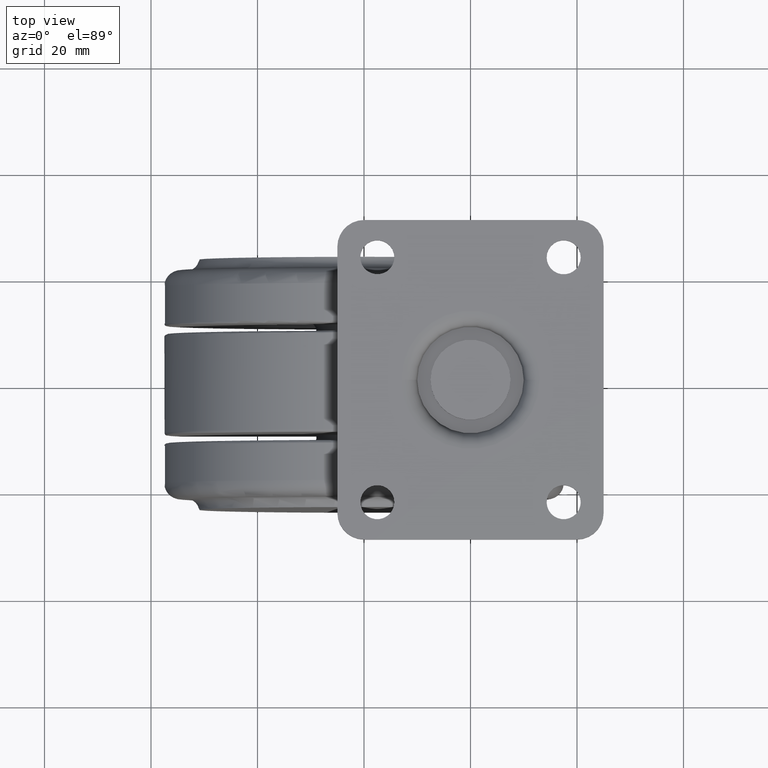
[diagram: clean part render]
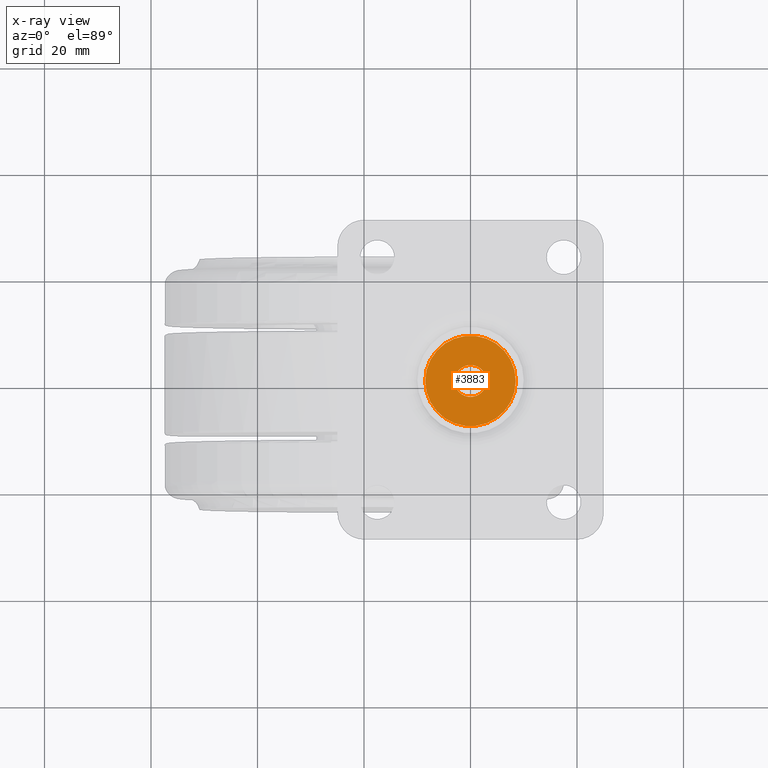
[diagram: x-ray — body ghosted, one internal face saturated and labeled with its STEP entity id]
A machine part, top view, then the same camera in x-ray: the body is ghosted and one INTERNAL B-rep face — a face not visible from any outside direction — is saturated and labeled: STEP entity #3883.
In plain terms, the highlighted planar face has unit normal (0, 0, -1).
Its self-contained STEP definition (entity closure, byte-faithful):
#19 = EDGE_CURVE ( 'NONE', #1940, #538, #3059, .T. ) ;
#176 = CARTESIAN_POINT ( 'NONE',  ( 0.0000000000000000000, 0.0000000000000000000, 0.0000000000000000000 ) ) ;
#271 = CARTESIAN_POINT ( 'NONE',  ( 0.0000000000000000000, 0.0000000000000000000, 0.0000000000000000000 ) ) ;
#291 = AXIS2_PLACEMENT_3D ( 'NONE', #176, #2521, #518 ) ;
#394 = FACE_BOUND ( 'NONE', #1889, .T. ) ;
#406 = ORIENTED_EDGE ( 'NONE', *, *, #903, .T. ) ;
#439 = VERTEX_POINT ( 'NONE', #911 ) ;
#518 = DIRECTION ( 'NONE',  ( -1.000000000000000000, 0.0000000000000000000, 0.0000000000000000000 ) ) ;
#538 = VERTEX_POINT ( 'NONE', #2282 ) ;
#608 = CIRCLE ( 'NONE', #3630, 3.000000000000000000 ) ;
#609 = DIRECTION ( 'NONE',  ( -1.000000000000000000, 0.0000000000000000000, 0.0000000000000000000 ) ) ;
#903 = EDGE_CURVE ( 'NONE', #538, #1940, #608, .T. ) ;
#911 = CARTESIAN_POINT ( 'NONE',  ( 8.500000000000000000, 1.040949779275250100E-015, 0.0000000000000000000 ) ) ;
#1049 = CARTESIAN_POINT ( 'NONE',  ( -8.500000000000000000, 0.0000000000000000000, 0.0000000000000000000 ) ) ;
#1173 = CARTESIAN_POINT ( 'NONE',  ( 0.0000000000000000000, 0.0000000000000000000, 0.0000000000000000000 ) ) ;
#1335 = DIRECTION ( 'NONE',  ( -0.0000000000000000000, -0.0000000000000000000, 1.000000000000000000 ) ) ;
#1400 = ORIENTED_EDGE ( 'NONE', *, *, #4072, .T. ) ;
#1436 = DIRECTION ( 'NONE',  ( 0.0000000000000000000, 0.0000000000000000000, -1.000000000000000000 ) ) ;
#1496 = DIRECTION ( 'NONE',  ( -1.000000000000000000, 0.0000000000000000000, 0.0000000000000000000 ) ) ;
#1628 = AXIS2_PLACEMENT_3D ( 'NONE', #3336, #1335, #3673 ) ;
#1761 = CARTESIAN_POINT ( 'NONE',  ( 0.0000000000000000000, 0.0000000000000000000, 0.0000000000000000000 ) ) ;
#1866 = VERTEX_POINT ( 'NONE', #1049 ) ;
#1889 = EDGE_LOOP ( 'NONE', ( #2350, #406 ) ) ;
#1940 = VERTEX_POINT ( 'NONE', #2071 ) ;
#2071 = CARTESIAN_POINT ( 'NONE',  ( 3.000000000000000000, 0.0000000000000000000, 0.0000000000000000000 ) ) ;
#2092 = ORIENTED_EDGE ( 'NONE', *, *, #3533, .T. ) ;
#2282 = CARTESIAN_POINT ( 'NONE',  ( -3.000000000000000000, 3.673940397442059900E-016, 0.0000000000000000000 ) ) ;
#2350 = ORIENTED_EDGE ( 'NONE', *, *, #19, .T. ) ;
#2358 = AXIS2_PLACEMENT_3D ( 'NONE', #271, #2616, #609 ) ;
#2521 = DIRECTION ( 'NONE',  ( 0.0000000000000000000, 0.0000000000000000000, -1.000000000000000000 ) ) ;
#2616 = DIRECTION ( 'NONE',  ( 0.0000000000000000000, 0.0000000000000000000, -1.000000000000000000 ) ) ;
#3059 = CIRCLE ( 'NONE', #1628, 3.000000000000000000 ) ;
#3195 = FACE_OUTER_BOUND ( 'NONE', #4014, .T. ) ;
#3252 = CIRCLE ( 'NONE', #291, 8.500000000000000000 ) ;
#3336 = CARTESIAN_POINT ( 'NONE',  ( 0.0000000000000000000, 0.0000000000000000000, 0.0000000000000000000 ) ) ;
#3348 = AXIS2_PLACEMENT_3D ( 'NONE', #1761, #1436, #3772 ) ;
#3442 = PLANE ( 'NONE',  #3348 ) ;
#3511 = DIRECTION ( 'NONE',  ( -0.0000000000000000000, -0.0000000000000000000, 1.000000000000000000 ) ) ;
#3533 = EDGE_CURVE ( 'NONE', #1866, #439, #3252, .T. ) ;
#3630 = AXIS2_PLACEMENT_3D ( 'NONE', #1173, #3511, #1496 ) ;
#3673 = DIRECTION ( 'NONE',  ( -1.000000000000000000, 0.0000000000000000000, 0.0000000000000000000 ) ) ;
#3772 = DIRECTION ( 'NONE',  ( -1.000000000000000000, 0.0000000000000000000, 0.0000000000000000000 ) ) ;
#3883 = ADVANCED_FACE ( 'NONE', ( #394, #3195 ), #3442, .T. ) ;
#3997 = CIRCLE ( 'NONE', #2358, 8.500000000000000000 ) ;
#4014 = EDGE_LOOP ( 'NONE', ( #2092, #1400 ) ) ;
#4072 = EDGE_CURVE ( 'NONE', #439, #1866, #3997, .T. ) ;